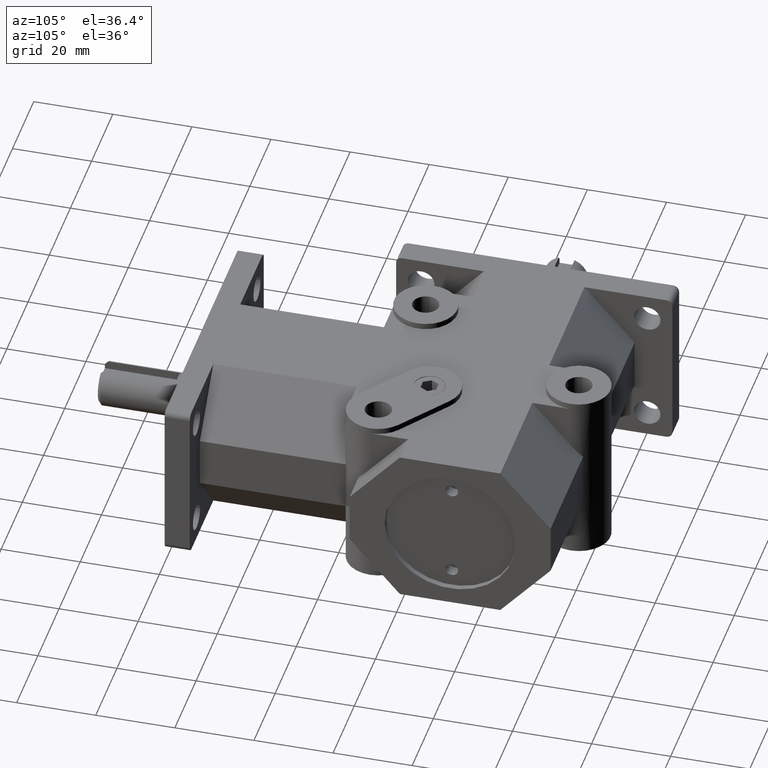
[diagram: clean part render]
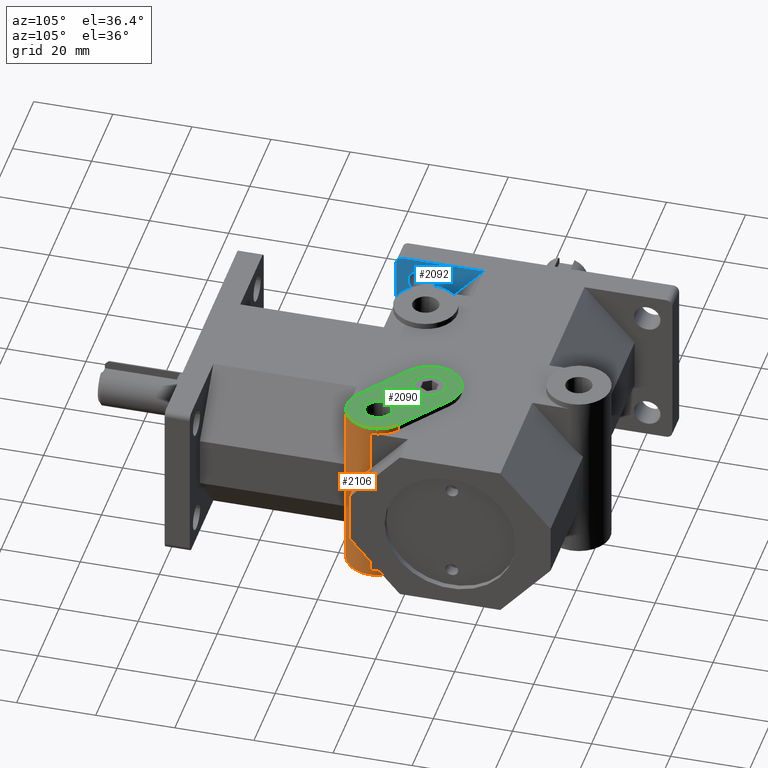
[diagram: same view with three faces highlighted in distinct colors, each labeled with its STEP entity id]
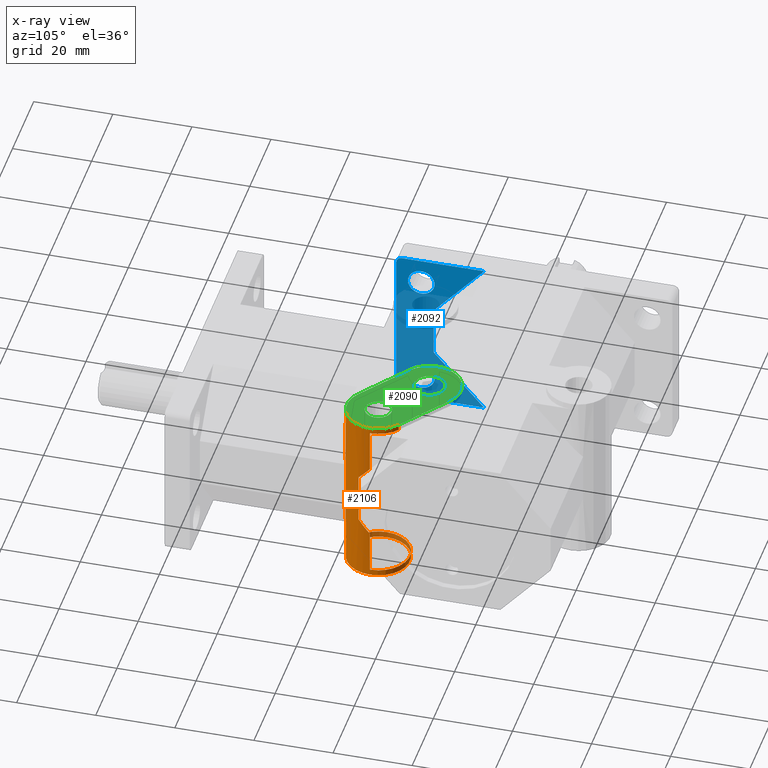
[diagram: x-ray of the same camera — body ghosted, the three highlighted faces saturated]
A machine part, auxiliary view with three faces highlighted in distinct colors.
The next image is the same camera in x-ray (body ghosted, the three faces saturated) — at least one of them is partly hidden behind the body in this view.
Their STEP definitions:

[orange] entity #2106 — the highlighted cylindrical surface (bore or boss wall) has radius 8.001 mm, axis along (0, 0, 1).
#46=CYLINDRICAL_SURFACE('',#2319,8.001);
#95=CIRCLE('',#2182,8.001);
#97=CIRCLE('',#2184,8.001);
#149=CIRCLE('',#2280,8.001);
#150=CIRCLE('',#2281,8.001);
#154=CIRCLE('',#2295,8.001);
#161=CIRCLE('',#2315,8.001);
#264=FACE_OUTER_BOUND('',#404,.T.);
#404=EDGE_LOOP('',(#1782,#1783,#1784,#1785,#1786,#1787,#1788,#1789,#1790,
#1791,#1792,#1793,#1794,#1795,#1796,#1797,#1798,#1799,#1800,#1801));
#446=ELLIPSE('',#2154,12.0730291425516,8.001);
#448=ELLIPSE('',#2158,12.0730291425516,8.001);
#450=ELLIPSE('',#2162,12.0730291425516,8.001);
#452=ELLIPSE('',#2166,12.0730291425516,8.001);
#505=LINE('',#3122,#702);
#513=LINE('',#3136,#710);
#621=LINE('',#3508,#818);
#622=LINE('',#3510,#819);
#623=LINE('',#3512,#820);
#624=LINE('',#3514,#821);
#626=LINE('',#3524,#823);
#627=LINE('',#3525,#824);
#628=LINE('',#3526,#825);
#702=VECTOR('',#2463,1.);
#710=VECTOR('',#2481,1.);
#818=VECTOR('',#2853,1.);
#819=VECTOR('',#2856,1.);
#820=VECTOR('',#2859,1.);
#821=VECTOR('',#2862,1.);
#823=VECTOR('',#2876,8.001);
#824=VECTOR('',#2877,1.);
#825=VECTOR('',#2878,1.);
#862=VERTEX_POINT('',#3014);
#863=VERTEX_POINT('',#3016);
#873=VERTEX_POINT('',#3038);
#874=VERTEX_POINT('',#3040);
#881=VERTEX_POINT('',#3056);
#884=VERTEX_POINT('',#3062);
#890=VERTEX_POINT('',#3077);
#891=VERTEX_POINT('',#3078);
#923=VERTEX_POINT('',#3166);
#924=VERTEX_POINT('',#3168);
#927=VERTEX_POINT('',#3174);
#928=VERTEX_POINT('',#3176);
#1004=VERTEX_POINT('',#3418);
#1005=VERTEX_POINT('',#3420);
#1006=VERTEX_POINT('',#3422);
#1022=VERTEX_POINT('',#3475);
#1023=VERTEX_POINT('',#3476);
#1031=VERTEX_POINT('',#3516);
#1059=EDGE_CURVE('',#863,#862,#446,.T.);
#1070=EDGE_CURVE('',#874,#873,#448,.T.);
#1081=EDGE_CURVE('',#881,#884,#450,.T.);
#1087=EDGE_CURVE('',#890,#891,#452,.T.);
#1108=EDGE_CURVE('',#874,#862,#505,.T.);
#1117=EDGE_CURVE('',#890,#884,#513,.T.);
#1135=EDGE_CURVE('',#923,#924,#95,.T.);
#1139=EDGE_CURVE('',#927,#928,#97,.T.);
#1254=EDGE_CURVE('',#1004,#1005,#149,.T.);
#1255=EDGE_CURVE('',#1005,#1006,#150,.T.);
#1282=EDGE_CURVE('',#1022,#1023,#154,.T.);
#1297=EDGE_CURVE('',#873,#928,#621,.T.);
#1298=EDGE_CURVE('',#881,#923,#622,.T.);
#1299=EDGE_CURVE('',#1006,#891,#623,.T.);
#1300=EDGE_CURVE('',#1004,#863,#624,.T.);
#1301=EDGE_CURVE('',#1031,#1031,#161,.T.);
#1304=EDGE_CURVE('',#1005,#1031,#626,.T.);
#1305=EDGE_CURVE('',#927,#1022,#627,.T.);
#1306=EDGE_CURVE('',#924,#1023,#628,.T.);
#1782=ORIENTED_EDGE('',*,*,#1087,.T.);
#1783=ORIENTED_EDGE('',*,*,#1299,.F.);
#1784=ORIENTED_EDGE('',*,*,#1255,.F.);
#1785=ORIENTED_EDGE('',*,*,#1304,.T.);
#1786=ORIENTED_EDGE('',*,*,#1301,.T.);
#1787=ORIENTED_EDGE('',*,*,#1304,.F.);
#1788=ORIENTED_EDGE('',*,*,#1254,.F.);
#1789=ORIENTED_EDGE('',*,*,#1300,.T.);
#1790=ORIENTED_EDGE('',*,*,#1059,.T.);
#1791=ORIENTED_EDGE('',*,*,#1108,.F.);
#1792=ORIENTED_EDGE('',*,*,#1070,.T.);
#1793=ORIENTED_EDGE('',*,*,#1297,.T.);
#1794=ORIENTED_EDGE('',*,*,#1139,.F.);
#1795=ORIENTED_EDGE('',*,*,#1305,.T.);
#1796=ORIENTED_EDGE('',*,*,#1282,.T.);
#1797=ORIENTED_EDGE('',*,*,#1306,.F.);
#1798=ORIENTED_EDGE('',*,*,#1135,.F.);
#1799=ORIENTED_EDGE('',*,*,#1298,.F.);
#1800=ORIENTED_EDGE('',*,*,#1081,.T.);
#1801=ORIENTED_EDGE('',*,*,#1117,.F.);
#2106=ADVANCED_FACE('',(#264),#46,.T.);
#2154=AXIS2_PLACEMENT_3D('',#3017,#2384,#2385);
#2158=AXIS2_PLACEMENT_3D('',#3041,#2401,#2402);
#2162=AXIS2_PLACEMENT_3D('',#3064,#2418,#2419);
#2166=AXIS2_PLACEMENT_3D('',#3079,#2430,#2431);
#2182=AXIS2_PLACEMENT_3D('',#3169,#2503,#2504);
#2184=AXIS2_PLACEMENT_3D('',#3177,#2509,#2510);
#2280=AXIS2_PLACEMENT_3D('',#3421,#2760,#2761);
#2281=AXIS2_PLACEMENT_3D('',#3423,#2762,#2763);
#2295=AXIS2_PLACEMENT_3D('',#3477,#2813,#2814);
#2315=AXIS2_PLACEMENT_3D('',#3517,#2865,#2866);
#2319=AXIS2_PLACEMENT_3D('',#3523,#2874,#2875);
#2384=DIRECTION('center_axis',(0.,-0.748870055165724,-0.662716862978517));
#2385=DIRECTION('ref_axis',(0.,0.662716862978517,-0.748870055165724));
#2401=DIRECTION('center_axis',(0.,-0.748870055165724,0.662716862978517));
#2402=DIRECTION('ref_axis',(0.,0.662716862978517,0.748870055165724));
#2418=DIRECTION('center_axis',(0.748870055165724,0.,0.662716862978517));
#2419=DIRECTION('ref_axis',(0.662716862978517,0.,-0.748870055165724));
#2430=DIRECTION('center_axis',(0.748870055165724,0.,-0.662716862978517));
#2431=DIRECTION('ref_axis',(0.662716862978517,0.,0.748870055165724));
#2463=DIRECTION('',(0.,0.,-1.));
#2481=DIRECTION('',(0.,0.,1.));
#2503=DIRECTION('center_axis',(0.,0.,-1.));
#2504=DIRECTION('ref_axis',(1.,0.,0.));
#2509=DIRECTION('center_axis',(0.,0.,-1.));
#2510=DIRECTION('ref_axis',(1.,0.,0.));
#2760=DIRECTION('center_axis',(0.,0.,1.));
#2761=DIRECTION('ref_axis',(1.,0.,0.));
#2762=DIRECTION('center_axis',(0.,0.,1.));
#2763=DIRECTION('ref_axis',(1.,0.,0.));
#2813=DIRECTION('center_axis',(0.,0.,-1.));
#2814=DIRECTION('ref_axis',(1.,0.,0.));
#2853=DIRECTION('',(0.,0.,1.));
#2856=DIRECTION('',(0.,0.,1.));
#2859=DIRECTION('',(0.,0.,1.));
#2862=DIRECTION('',(0.,0.,1.));
#2865=DIRECTION('center_axis',(0.,0.,1.));
#2866=DIRECTION('ref_axis',(1.,0.,0.));
#2874=DIRECTION('center_axis',(0.,0.,1.));
#2875=DIRECTION('ref_axis',(1.,0.,0.));
#2876=DIRECTION('',(0.,0.,-1.));
#2877=DIRECTION('',(0.,0.,1.));
#2878=DIRECTION('',(0.,0.,1.));
#3014=CARTESIAN_POINT('',(29.749681866639,47.625,-6.35));
#3016=CARTESIAN_POINT('',(30.353,50.673,-9.79424000000001));
#3017=CARTESIAN_POINT('Origin',(22.352,50.673,-9.79424));
#3038=CARTESIAN_POINT('',(30.353,50.673,9.79424000000001));
#3040=CARTESIAN_POINT('',(29.749681866639,47.625,6.35));
#3041=CARTESIAN_POINT('Origin',(22.352,50.673,9.79424));
#3056=CARTESIAN_POINT('',(22.352,42.672,9.79424000000003));
#3062=CARTESIAN_POINT('',(25.4,43.275318133361,6.35));
#3064=CARTESIAN_POINT('Origin',(22.352,50.673,9.79423999999999));
#3077=CARTESIAN_POINT('',(25.4,43.275318133361,-6.35));
#3078=CARTESIAN_POINT('',(22.352,42.672,-9.79424000000003));
#3079=CARTESIAN_POINT('Origin',(22.352,50.673,-9.79424));
#3122=CARTESIAN_POINT('',(29.749681866639,47.625,0.));
#3136=CARTESIAN_POINT('',(25.4,43.275318133361,0.));
#3166=CARTESIAN_POINT('',(22.352,42.672,20.701));
#3168=CARTESIAN_POINT('',(17.5514,44.2722,20.701));
#3169=CARTESIAN_POINT('Origin',(22.352,50.673,20.701));
#3174=CARTESIAN_POINT('',(27.1526,57.0738,20.701));
#3176=CARTESIAN_POINT('',(30.353,50.673,20.701));
#3177=CARTESIAN_POINT('Origin',(22.352,50.673,20.701));
#3418=CARTESIAN_POINT('',(30.353,50.673,-20.701));
#3420=CARTESIAN_POINT('',(14.351,50.673,-20.701));
#3421=CARTESIAN_POINT('Origin',(22.352,50.673,-20.701));
#3422=CARTESIAN_POINT('',(22.352,42.672,-20.701));
#3423=CARTESIAN_POINT('Origin',(22.352,50.673,-20.701));
#3475=CARTESIAN_POINT('',(27.1526,57.0738,22.225));
#3476=CARTESIAN_POINT('',(17.5514,44.2722,22.225));
#3477=CARTESIAN_POINT('Origin',(22.352,50.673,22.225));
#3508=CARTESIAN_POINT('',(30.353,50.673,0.));
#3510=CARTESIAN_POINT('',(22.352,42.672,0.));
#3512=CARTESIAN_POINT('',(22.352,42.672,0.));
#3514=CARTESIAN_POINT('',(30.353,50.673,0.));
#3516=CARTESIAN_POINT('',(14.351,50.673,-22.225));
#3517=CARTESIAN_POINT('Origin',(22.352,50.673,-22.225));
#3523=CARTESIAN_POINT('Origin',(22.352,50.673,0.));
#3524=CARTESIAN_POINT('',(14.351,50.673,0.));
#3525=CARTESIAN_POINT('',(27.1526,57.0738,0.));
#3526=CARTESIAN_POINT('',(17.5514,44.2722,0.));

[blue] entity #2092 — the highlighted planar face has unit normal (1, 0, 0).
#75=FACE_BOUND('',#385,.T.);
#76=FACE_BOUND('',#386,.T.);
#130=CIRCLE('',#2253,1.524);
#132=CIRCLE('',#2256,1.524);
#157=CIRCLE('',#2300,3.3655);
#158=CIRCLE('',#2301,3.3655);
#250=FACE_OUTER_BOUND('',#384,.T.);
#384=EDGE_LOOP('',(#1717,#1718,#1719,#1720,#1721,#1722,#1723,#1724));
#385=EDGE_LOOP('',(#1725));
#386=EDGE_LOOP('',(#1726));
#494=LINE('',#3094,#691);
#502=LINE('',#3118,#699);
#520=LINE('',#3151,#717);
#532=LINE('',#3180,#729);
#585=LINE('',#3411,#782);
#616=LINE('',#3488,#813);
#691=VECTOR('',#2440,1.);
#699=VECTOR('',#2458,1.);
#717=VECTOR('',#2492,1.);
#729=VECTOR('',#2514,1.);
#782=VECTOR('',#2753,1.);
#813=VECTOR('',#2826,1.);
#897=VERTEX_POINT('',#3091);
#898=VERTEX_POINT('',#3093);
#908=VERTEX_POINT('',#3115);
#909=VERTEX_POINT('',#3117);
#916=VERTEX_POINT('',#3149);
#977=VERTEX_POINT('',#3343);
#980=VERTEX_POINT('',#3350);
#981=VERTEX_POINT('',#3352);
#1027=VERTEX_POINT('',#3489);
#1028=VERTEX_POINT('',#3491);
#1094=EDGE_CURVE('',#898,#897,#494,.T.);
#1105=EDGE_CURVE('',#909,#908,#502,.T.);
#1125=EDGE_CURVE('',#897,#916,#520,.T.);
#1141=EDGE_CURVE('',#898,#908,#532,.T.);
#1214=EDGE_CURVE('',#977,#916,#130,.T.);
#1217=EDGE_CURVE('',#980,#981,#132,.T.);
#1248=EDGE_CURVE('',#909,#980,#585,.T.);
#1288=EDGE_CURVE('',#977,#981,#616,.T.);
#1289=EDGE_CURVE('',#1027,#1027,#157,.T.);
#1290=EDGE_CURVE('',#1028,#1028,#158,.T.);
#1717=ORIENTED_EDGE('',*,*,#1214,.F.);
#1718=ORIENTED_EDGE('',*,*,#1288,.T.);
#1719=ORIENTED_EDGE('',*,*,#1217,.F.);
#1720=ORIENTED_EDGE('',*,*,#1248,.F.);
#1721=ORIENTED_EDGE('',*,*,#1105,.T.);
#1722=ORIENTED_EDGE('',*,*,#1141,.F.);
#1723=ORIENTED_EDGE('',*,*,#1094,.T.);
#1724=ORIENTED_EDGE('',*,*,#1125,.T.);
#1725=ORIENTED_EDGE('',*,*,#1289,.T.);
#1726=ORIENTED_EDGE('',*,*,#1290,.T.);
#1991=PLANE('',#2299);
#2092=ADVANCED_FACE('',(#250,#75,#76),#1991,.T.);
#2253=AXIS2_PLACEMENT_3D('',#3345,#2685,#2686);
#2256=AXIS2_PLACEMENT_3D('',#3353,#2692,#2693);
#2299=AXIS2_PLACEMENT_3D('',#3487,#2824,#2825);
#2300=AXIS2_PLACEMENT_3D('',#3490,#2827,#2828);
#2301=AXIS2_PLACEMENT_3D('',#3492,#2829,#2830);
#2440=DIRECTION('',(0.,0.662716862978517,0.748870055165724));
#2458=DIRECTION('',(0.,-0.662716862978517,0.748870055165724));
#2492=DIRECTION('',(0.,-1.,0.));
#2514=DIRECTION('',(0.,0.,-1.));
#2685=DIRECTION('center_axis',(-1.,0.,0.));
#2686=DIRECTION('ref_axis',(0.,-0.707106781186548,0.707106781186548));
#2692=DIRECTION('center_axis',(-1.,0.,0.));
#2693=DIRECTION('ref_axis',(0.,-0.707106781186548,-0.707106781186548));
#2753=DIRECTION('',(0.,-1.,0.));
#2824=DIRECTION('center_axis',(1.,0.,0.));
#2825=DIRECTION('ref_axis',(0.,-1.,0.));
#2826=DIRECTION('',(0.,0.,-1.));
#2827=DIRECTION('center_axis',(-1.,0.,0.));
#2828=DIRECTION('ref_axis',(0.,1.,0.));
#2829=DIRECTION('center_axis',(-1.,0.,0.));
#2830=DIRECTION('ref_axis',(0.,1.,0.));
#3091=CARTESIAN_POINT('',(-41.275,60.325,20.701));
#3093=CARTESIAN_POINT('',(-41.275,47.625,6.35));
#3094=CARTESIAN_POINT('',(-41.275,47.625,6.35));
#3115=CARTESIAN_POINT('',(-41.275,47.625,-6.35));
#3117=CARTESIAN_POINT('',(-41.275,60.325,-20.701));
#3118=CARTESIAN_POINT('',(-41.275,60.325,-20.701));
#3149=CARTESIAN_POINT('',(-41.275,39.624,20.701));
#3151=CARTESIAN_POINT('',(-41.275,47.625,20.701));
#3180=CARTESIAN_POINT('',(-41.275,47.625,0.));
#3343=CARTESIAN_POINT('',(-41.275,38.1,19.177));
#3345=CARTESIAN_POINT('Origin',(-41.275,39.624,19.177));
#3350=CARTESIAN_POINT('',(-41.275,39.624,-20.701));
#3352=CARTESIAN_POINT('',(-41.275,38.1,-19.177));
#3353=CARTESIAN_POINT('Origin',(-41.275,39.624,-19.177));
#3411=CARTESIAN_POINT('',(-41.275,45.8651887651822,-20.701));
#3487=CARTESIAN_POINT('Origin',(-41.275,38.1,0.));
#3488=CARTESIAN_POINT('',(-41.275,38.1,0.));
#3489=CARTESIAN_POINT('',(-41.275,41.0845,14.2748));
#3490=CARTESIAN_POINT('Origin',(-41.275,44.45,14.2748));
#3491=CARTESIAN_POINT('',(-41.275,41.0845,-14.2748));
#3492=CARTESIAN_POINT('Origin',(-41.275,44.45,-14.2748));

[green] entity #2090 — the highlighted planar face has unit normal (0, 0, 1).
#73=FACE_BOUND('',#381,.T.);
#74=FACE_BOUND('',#382,.T.);
#153=CIRCLE('',#2286,3.937);
#154=CIRCLE('',#2295,8.001);
#155=CIRCLE('',#2296,8.001);
#156=CIRCLE('',#2297,3.3655);
#248=FACE_OUTER_BOUND('',#380,.T.);
#380=EDGE_LOOP('',(#1707,#1708,#1709,#1710));
#381=EDGE_LOOP('',(#1711));
#382=EDGE_LOOP('',(#1712));
#613=LINE('',#3479,#810);
#614=LINE('',#3482,#811);
#810=VECTOR('',#2815,1.);
#811=VECTOR('',#2818,1.);
#1009=VERTEX_POINT('',#3434);
#1022=VERTEX_POINT('',#3475);
#1023=VERTEX_POINT('',#3476);
#1024=VERTEX_POINT('',#3478);
#1025=VERTEX_POINT('',#3480);
#1026=VERTEX_POINT('',#3483);
#1262=EDGE_CURVE('',#1009,#1009,#153,.T.);
#1282=EDGE_CURVE('',#1022,#1023,#154,.T.);
#1283=EDGE_CURVE('',#1024,#1022,#613,.T.);
#1284=EDGE_CURVE('',#1025,#1024,#155,.T.);
#1285=EDGE_CURVE('',#1023,#1025,#614,.T.);
#1286=EDGE_CURVE('',#1026,#1026,#156,.T.);
#1707=ORIENTED_EDGE('',*,*,#1282,.F.);
#1708=ORIENTED_EDGE('',*,*,#1283,.F.);
#1709=ORIENTED_EDGE('',*,*,#1284,.F.);
#1710=ORIENTED_EDGE('',*,*,#1285,.F.);
#1711=ORIENTED_EDGE('',*,*,#1286,.T.);
#1712=ORIENTED_EDGE('',*,*,#1262,.T.);
#1989=PLANE('',#2294);
#2090=ADVANCED_FACE('',(#248,#73,#74),#1989,.T.);
#2286=AXIS2_PLACEMENT_3D('',#3435,#2776,#2777);
#2294=AXIS2_PLACEMENT_3D('',#3474,#2811,#2812);
#2295=AXIS2_PLACEMENT_3D('',#3477,#2813,#2814);
#2296=AXIS2_PLACEMENT_3D('',#3481,#2816,#2817);
#2297=AXIS2_PLACEMENT_3D('',#3484,#2819,#2820);
#2776=DIRECTION('center_axis',(0.,0.,-1.));
#2777=DIRECTION('ref_axis',(-1.,0.,0.));
#2811=DIRECTION('center_axis',(0.,0.,1.));
#2812=DIRECTION('ref_axis',(-1.,0.,0.));
#2813=DIRECTION('center_axis',(0.,0.,-1.));
#2814=DIRECTION('ref_axis',(1.,0.,0.));
#2815=DIRECTION('',(0.8,-0.6,0.));
#2816=DIRECTION('center_axis',(0.,0.,-1.));
#2817=DIRECTION('ref_axis',(1.,0.,0.));
#2818=DIRECTION('',(-0.8,0.6,0.));
#2819=DIRECTION('center_axis',(0.,0.,-1.));
#2820=DIRECTION('ref_axis',(1.,0.,0.));
#3434=CARTESIAN_POINT('',(13.589,60.198,22.225));
#3435=CARTESIAN_POINT('Origin',(9.652,60.198,22.225));
#3474=CARTESIAN_POINT('Origin',(23.0793636363636,50.673,22.225));
#3475=CARTESIAN_POINT('',(27.1526,57.0738,22.225));
#3476=CARTESIAN_POINT('',(17.5514,44.2722,22.225));
#3477=CARTESIAN_POINT('Origin',(22.352,50.673,22.225));
#3478=CARTESIAN_POINT('',(14.4526,66.5988,22.225));
#3479=CARTESIAN_POINT('',(27.1526,57.0738,22.225));
#3480=CARTESIAN_POINT('',(4.85140000000001,53.7972,22.225));
#3481=CARTESIAN_POINT('Origin',(9.652,60.198,22.225));
#3482=CARTESIAN_POINT('',(4.85140000000001,53.7972,22.225));
#3483=CARTESIAN_POINT('',(18.9865,50.673,22.225));
#3484=CARTESIAN_POINT('Origin',(22.352,50.673,22.225));